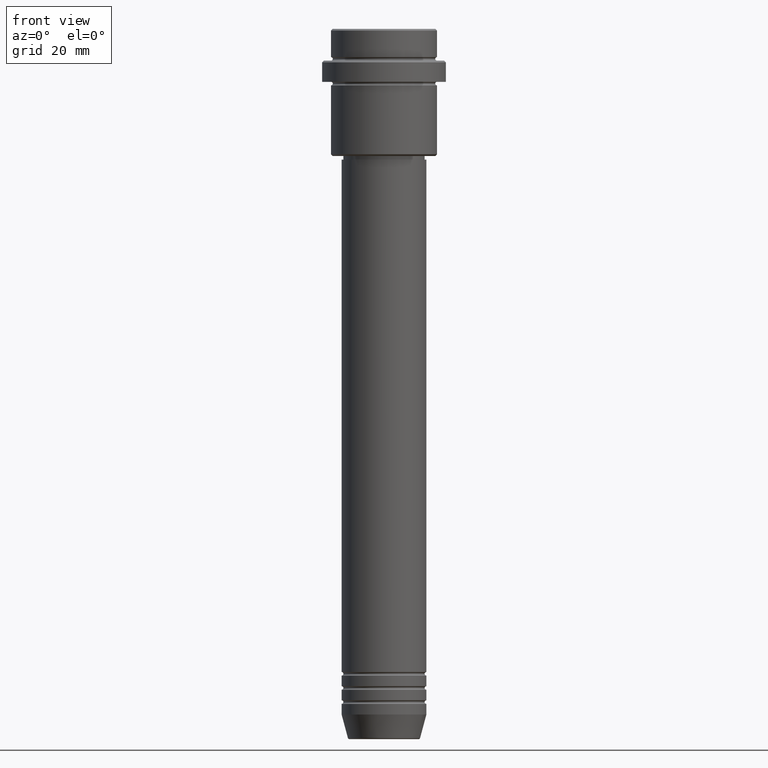
[diagram: clean part render]
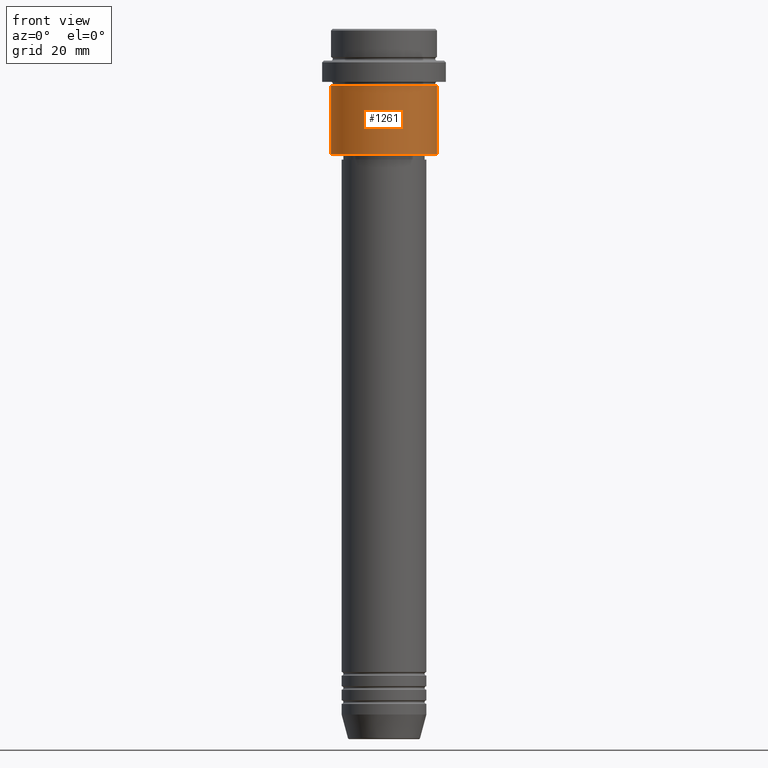
[diagram: same view with one face highlighted and labeled with its STEP entity id]
A machine part, front view. The second image highlights one B-rep face of the part: STEP entity #1261.
In plain terms, the highlighted cylindrical surface (partial cylindrical patch) has radius 15 mm, axis along (-0, -0, 1).
Its self-contained STEP definition (entity closure, byte-faithful):
#35 = ORIENTED_EDGE ( 'NONE', *, *, #766, .T. ) ;
#62 = EDGE_LOOP ( 'NONE', ( #453, #35, #378, #135 ) ) ;
#135 = ORIENTED_EDGE ( 'NONE', *, *, #693, .F. ) ;
#205 = DIRECTION ( 'NONE',  ( -0.000000000000000000, -0.000000000000000000, 1.000000000000000000 ) ) ;
#224 = CARTESIAN_POINT ( 'NONE',  ( 15.00000000000000178, 0.000000000000000000, -16.00000000000000000 ) ) ;
#297 = EDGE_CURVE ( 'NONE', #1271, #365, #1227, .T. ) ;
#365 = VERTEX_POINT ( 'NONE', #703 ) ;
#378 = ORIENTED_EDGE ( 'NONE', *, *, #679, .T. ) ;
#380 = CARTESIAN_POINT ( 'NONE',  ( 0.000000000000000000, 0.000000000000000000, -16.00000000000000000 ) ) ;
#388 = LINE ( 'NONE', #1168, #399 ) ;
#399 = VECTOR ( 'NONE', #1274, 1000.000000000000000 ) ;
#447 = AXIS2_PLACEMENT_3D ( 'NONE', #626, #492, #621 ) ;
#453 = ORIENTED_EDGE ( 'NONE', *, *, #297, .F. ) ;
#473 = DIRECTION ( 'NONE',  ( -0.000000000000000000, -0.000000000000000000, 1.000000000000000000 ) ) ;
#482 = DIRECTION ( 'NONE',  ( 1.000000000000000000, 0.000000000000000000, 0.000000000000000000 ) ) ;
#492 = DIRECTION ( 'NONE',  ( -0.000000000000000000, -0.000000000000000000, 1.000000000000000000 ) ) ;
#517 = DIRECTION ( 'NONE',  ( -0.000000000000000000, -0.000000000000000000, 1.000000000000000000 ) ) ;
#528 = DIRECTION ( 'NONE',  ( 1.000000000000000000, 0.000000000000000000, 0.000000000000000000 ) ) ;
#534 = CARTESIAN_POINT ( 'NONE',  ( -15.00000000000000000, 1.836970198721029589E-15, -35.50000000000004263 ) ) ;
#621 = DIRECTION ( 'NONE',  ( -1.000000000000000000, 0.000000000000000000, 0.000000000000000000 ) ) ;
#626 = CARTESIAN_POINT ( 'NONE',  ( 0.000000000000000000, 0.000000000000000000, -35.50000000000004263 ) ) ;
#679 = EDGE_CURVE ( 'NONE', #802, #1216, #388, .T. ) ;
#693 = EDGE_CURVE ( 'NONE', #365, #1216, #773, .T. ) ;
#703 = CARTESIAN_POINT ( 'NONE',  ( -15.00000000000000355, 1.836970198721029983E-15, -16.00000000000000000 ) ) ;
#766 = EDGE_CURVE ( 'NONE', #1271, #802, #1001, .T. ) ;
#773 = CIRCLE ( 'NONE', #954, 15.00000000000000178 ) ;
#797 = AXIS2_PLACEMENT_3D ( 'NONE', #1178, #205, #528 ) ;
#802 = VERTEX_POINT ( 'NONE', #1404 ) ;
#954 = AXIS2_PLACEMENT_3D ( 'NONE', #380, #517, #482 ) ;
#1001 = CIRCLE ( 'NONE', #447, 15.00000000000000000 ) ;
#1151 = CARTESIAN_POINT ( 'NONE',  ( -15.00000000000000000, 1.836970198721029589E-15, 0.000000000000000000 ) ) ;
#1168 = CARTESIAN_POINT ( 'NONE',  ( 15.00000000000000000, 0.000000000000000000, 0.000000000000000000 ) ) ;
#1178 = CARTESIAN_POINT ( 'NONE',  ( 0.000000000000000000, 0.000000000000000000, 0.000000000000000000 ) ) ;
#1196 = FACE_OUTER_BOUND ( 'NONE', #62, .T. ) ;
#1216 = VERTEX_POINT ( 'NONE', #224 ) ;
#1227 = LINE ( 'NONE', #1151, #1282 ) ;
#1261 = ADVANCED_FACE ( 'NONE', ( #1196 ), #1288, .T. ) ;
#1271 = VERTEX_POINT ( 'NONE', #534 ) ;
#1274 = DIRECTION ( 'NONE',  ( -0.000000000000000000, -0.000000000000000000, 1.000000000000000000 ) ) ;
#1282 = VECTOR ( 'NONE', #473, 1000.000000000000000 ) ;
#1288 = CYLINDRICAL_SURFACE ( 'NONE', #797, 15.00000000000000000 ) ;
#1404 = CARTESIAN_POINT ( 'NONE',  ( 15.00000000000000000, 0.000000000000000000, -35.50000000000004263 ) ) ;